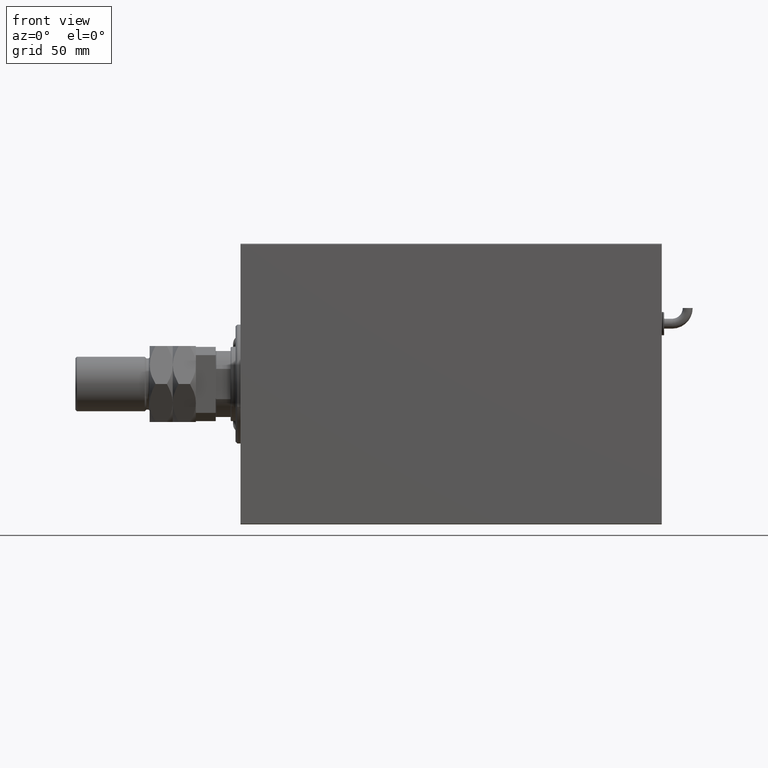
[diagram: clean part render]
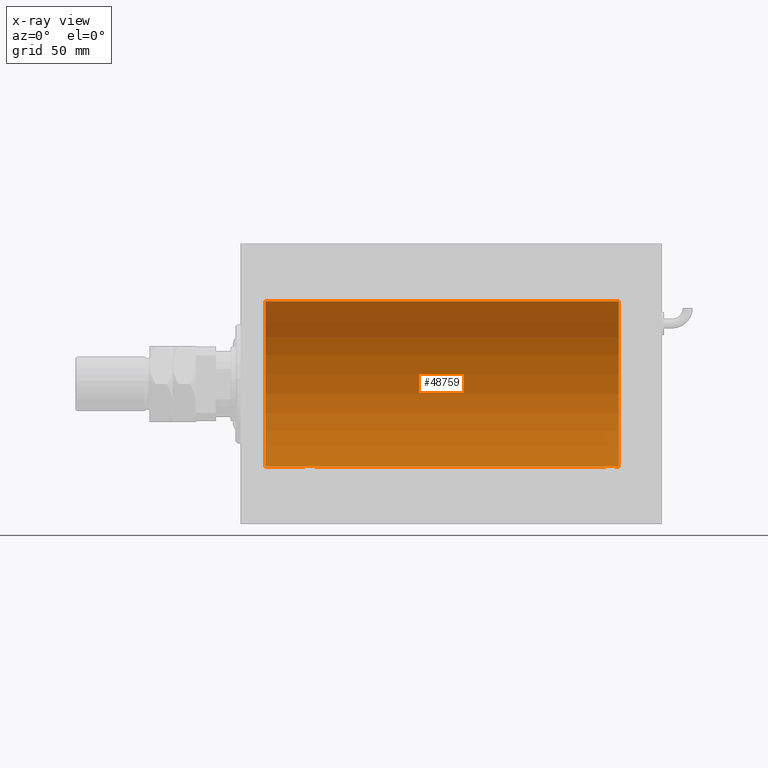
[diagram: x-ray — body ghosted, one internal face saturated and labeled with its STEP entity id]
A machine part, front view, then the same camera in x-ray: the body is ghosted and one INTERNAL B-rep face — a face not visible from any outside direction — is saturated and labeled: STEP entity #48759.
In plain terms, the highlighted cylindrical surface (partial cylindrical patch) has radius 50 mm, axis along (-1, -0, -0).
Its self-contained STEP definition (entity closure, byte-faithful):
#199 = CARTESIAN_POINT ( 'NONE',  ( 227.2031099266032186, 2.807369215369745152, -49.92152015083319583 ) ) ;
#503 = CARTESIAN_POINT ( 'NONE',  ( 227.6867223433927165, 2.132418568805259707, -49.95503838744803460 ) ) ;
#1309 = ORIENTED_EDGE ( 'NONE', *, *, #46638, .F. ) ;
#2515 = DIRECTION ( 'NONE',  ( -1.000000000000000000, -0.000000000000000000, -0.000000000000000000 ) ) ;
#3249 = CARTESIAN_POINT ( 'NONE',  ( 43.88244393595702775, 3.820534283589345215, -49.85393595968220382 ) ) ;
#3564 = CARTESIAN_POINT ( 'NONE',  ( 46.03309295314473815, 1.369053668635239029, -49.98191709664470750 ) ) ;
#3619 = VERTEX_POINT ( 'NONE', #36972 ) ;
#3629 = CARTESIAN_POINT ( 'NONE',  ( 220.7993621877382111, 2.809844036175760618, -49.92137121633495411 ) ) ;
#3876 = CARTESIAN_POINT ( 'NONE',  ( 43.10272132003798617, 4.113850194901019997, -49.83050476025722020 ) ) ;
#3912 = AXIS2_PLACEMENT_3D ( 'NONE', #13206, #15059, #58288 ) ;
#4635 = LINE ( 'NONE', #51924, #18915 ) ;
#5630 = EDGE_CURVE ( 'NONE', #14964, #40802, #53873, .T. ) ;
#6143 = ORIENTED_EDGE ( 'NONE', *, *, #37734, .T. ) ;
#7619 = CARTESIAN_POINT ( 'NONE',  ( 39.19136994275037722, 3.201703158387186665, -49.89777173894964335 ) ) ;
#7660 = CARTESIAN_POINT ( 'NONE',  ( 229.0000000000000000, 0.000000000000000000, 0.000000000000000000 ) ) ;
#7776 = VECTOR ( 'NONE', #2515, 1000.000000000000000 ) ;
#7924 = CARTESIAN_POINT ( 'NONE',  ( 42.27580686784750696, 4.250099715408728329, -49.81903905555740408 ) ) ;
#8234 = CARTESIAN_POINT ( 'NONE',  ( 46.25000000000000000, 6.123233970928975205E-15, -50.00000000000000000 ) ) ;
#8620 = CARTESIAN_POINT ( 'NONE',  ( 222.1171299241770782, 3.820198949706813174, -49.85396053238189751 ) ) ;
#8928 = CARTESIAN_POINT ( 'NONE',  ( 219.7500000000000000, 0.2809437491437377088, -49.99999999999999289 ) ) ;
#9543 = CARTESIAN_POINT ( 'NONE',  ( 225.8824439359570988, 3.820534283589327895, -49.85393595968218960 ) ) ;
#10681 = ORIENTED_EDGE ( 'NONE', *, *, #53306, .T. ) ;
#11087 = CARTESIAN_POINT ( 'NONE',  ( 37.75000000000000711, 4.113764933535406279E-15, -50.00000000000000000 ) ) ;
#12661 = CARTESIAN_POINT ( 'NONE',  ( 219.8856356705657618, 1.100566060006306079, -49.98862465889503426 ) ) ;
#12904 = CARTESIAN_POINT ( 'NONE',  ( 45.68672234339271654, 2.132418568805258374, -49.95503838744804170 ) ) ;
#13206 = CARTESIAN_POINT ( 'NONE',  ( 229.0000000000000000, 0.000000000000000000, 0.000000000000000000 ) ) ;
#13210 = CARTESIAN_POINT ( 'NONE',  ( 44.59157860505092685, 3.379775232620401582, -49.88587880363004956 ) ) ;
#13595 = CARTESIAN_POINT ( 'NONE',  ( 224.2758068678475638, 4.250099715408711454, -49.81903905555740408 ) ) ;
#13627 = CARTESIAN_POINT ( 'NONE',  ( 14.99999999999998579, 6.123233995736764507E-15, -50.00000000000000000 ) ) ;
#14203 = CARTESIAN_POINT ( 'NONE',  ( 227.8198108108714734, 1.883929957684050915, -49.96515938649660171 ) ) ;
#14964 = VERTEX_POINT ( 'NONE', #43092 ) ;
#15059 = DIRECTION ( 'NONE',  ( -1.000000000000000000, -0.000000000000000000, -0.000000000000000000 ) ) ;
#15129 = CARTESIAN_POINT ( 'NONE',  ( 228.2221941516323227, 0.5592384970569909131, -49.99761483193759659 ) ) ;
#15887 = ORIENTED_EDGE ( 'NONE', *, *, #21190, .T. ) ;
#16557 = ORIENTED_EDGE ( 'NONE', *, *, #54516, .F. ) ;
#17272 = CARTESIAN_POINT ( 'NONE',  ( 42.55752310302692365, 4.222431257622166534, -49.82142152089561904 ) ) ;
#17333 = CARTESIAN_POINT ( 'NONE',  ( 219.9674261143144633, 1.370567417712630576, -49.98187507657574713 ) ) ;
#17593 = CARTESIAN_POINT ( 'NONE',  ( 38.18083879883148768, 1.885236035486737682, -49.96510958966687355 ) ) ;
#17910 = CARTESIAN_POINT ( 'NONE',  ( 40.89653788721327743, 4.113772393339292677, -49.83051149236716526 ) ) ;
#17973 = CARTESIAN_POINT ( 'NONE',  ( 220.3114161600499017, 2.129315083715772605, -49.95517470752238864 ) ) ;
#18346 = VECTOR ( 'NONE', #48048, 1000.000000000000000 ) ;
#18893 = CARTESIAN_POINT ( 'NONE',  ( 226.8062131493860534, 3.204122793140528280, -49.89762612798255503 ) ) ;
#18915 = VECTOR ( 'NONE', #52240, 1000.000000000000000 ) ;
#19805 = CARTESIAN_POINT ( 'NONE',  ( 228.2500000000000284, 6.123233970934497231E-15, -50.00000000000000000 ) ) ;
#20064 = LINE ( 'NONE', #60604, #45940 ) ;
#20145 = CARTESIAN_POINT ( 'NONE',  ( 228.2500000000000284, 6.123233970934497231E-15, -50.00000000000000000 ) ) ;
#21038 = EDGE_CURVE ( 'NONE', #43208, #3619, #38339, .T. ) ;
#21190 = EDGE_CURVE ( 'NONE', #61420, #55565, #22291, .T. ) ;
#21932 = CARTESIAN_POINT ( 'NONE',  ( 39.86990638200330750, 3.688265093516114757, -49.86402463145032016 ) ) ;
#21993 = CARTESIAN_POINT ( 'NONE',  ( 219.7775830999469520, 0.5571669497596730691, -49.99763400332481922 ) ) ;
#22291 = CIRCLE ( 'NONE', #43319, 50.00000000000000000 ) ;
#22558 = FACE_OUTER_BOUND ( 'NONE', #46492, .T. ) ;
#22623 = CARTESIAN_POINT ( 'NONE',  ( 221.1913699427504412, 3.201703158387165793, -49.89777173894965046 ) ) ;
#22870 = CARTESIAN_POINT ( 'NONE',  ( 45.37895730856141796, 2.592639214541047732, -49.93326838038160531 ) ) ;
#23551 = CARTESIAN_POINT ( 'NONE',  ( 226.1311681376585909, 3.687449343139604263, -49.86408027804464638 ) ) ;
#23976 = CARTESIAN_POINT ( 'NONE',  ( 229.0000000000000000, 0.000000000000000000, 50.00000000000000000 ) ) ;
#24476 = CARTESIAN_POINT ( 'NONE',  ( 226.5915786050509837, 3.379775232620408243, -49.88587880363004956 ) ) ;
#26483 = CARTESIAN_POINT ( 'NONE',  ( 229.0000000000000000, 6.123233995736764507E-15, -50.00000000000000000 ) ) ;
#27272 = AXIS2_PLACEMENT_3D ( 'NONE', #7660, #40345, #49066 ) ;
#27291 = CARTESIAN_POINT ( 'NONE',  ( 220.6198951369924259, 2.591239970584148011, -49.93334495304385712 ) ) ;
#27607 = CARTESIAN_POINT ( 'NONE',  ( 222.6285539677909355, 4.032152715176922975, -49.83726562785247438 ) ) ;
#27852 = CARTESIAN_POINT ( 'NONE',  ( 37.75000000000001421, 0.2809437491437614121, -50.00000000000000711 ) ) ;
#31570 = CARTESIAN_POINT ( 'NONE',  ( 37.96742611431444203, 1.370567417712651004, -49.98187507657574713 ) ) ;
#32186 = CARTESIAN_POINT ( 'NONE',  ( 45.20310992660323279, 2.807369215369746485, -49.92152015083320293 ) ) ;
#32248 = CARTESIAN_POINT ( 'NONE',  ( 221.4052884493547708, 3.377583483857611313, -49.88603192934380104 ) ) ;
#33173 = CARTESIAN_POINT ( 'NONE',  ( 228.0330929531448021, 1.369053668635237697, -49.98191709664471460 ) ) ;
#34877 = B_SPLINE_CURVE_WITH_KNOTS ( 'NONE', 3,
 ( #56152, #27852, #61126, #55215, #31570, #17593, #50226, #45886, #46505, #7619, #55533, #21932, #59882, #50537, #17910, #36549, #50851, #7924, #17272, #3876, #41541, #3249, #55840, #13210, #37157, #32186, #22870, #12904, #51164, #3564, #36233, #35931, #60818, #8234 ),
 .UNSPECIFIED., .F., .F.,
 ( 4, 2, 2, 2, 2, 2, 2, 2, 2, 2, 2, 2, 2, 2, 2, 2, 4 ),
 ( 1.445583722366810385E-18, 0.0008308394705804747525, 0.001661678941160947770, 0.002492518411741420463, 0.003323357882321893372, 0.004154197352902366282, 0.004985036823482840058, 0.005815876294063313835, 0.006646715764643786745, 0.007477555235224259654, 0.008308394705804732563, 0.009139234176385206340, 0.009970073646965680117, 0.01080091311754615389, 0.01163175258812662767, 0.01246259205870709971, 0.01329343152928757175 ),
 .UNSPECIFIED. ) ;
#35931 = CARTESIAN_POINT ( 'NONE',  ( 46.22219415163225875, 0.5592384970569972413, -49.99761483193760370 ) ) ;
#36233 = CARTESIAN_POINT ( 'NONE',  ( 46.11347230351615423, 1.104090919659213466, -49.98855088738324071 ) ) ;
#36549 = CARTESIAN_POINT ( 'NONE',  ( 41.44525962307189815, 4.222915468341970957, -49.82138079020267440 ) ) ;
#36611 = CARTESIAN_POINT ( 'NONE',  ( 219.7500000000000284, -1.485882679034568268E-14, -50.00000000000000000 ) ) ;
#36850 = CYLINDRICAL_SURFACE ( 'NONE', #3912, 50.00000000000000000 ) ;
#36972 = CARTESIAN_POINT ( 'NONE',  ( 229.0000000000000000, 6.123233995736764507E-15, -50.00000000000000000 ) ) ;
#37157 = CARTESIAN_POINT ( 'NONE',  ( 44.80621314938604627, 3.204122793140533165, -49.89762612798256924 ) ) ;
#37224 = CARTESIAN_POINT ( 'NONE',  ( 223.4452596230719053, 4.222915468341953193, -49.82138079020267440 ) ) ;
#37734 = EDGE_CURVE ( 'NONE', #57509, #60606, #34877, .T. ) ;
#37857 = CARTESIAN_POINT ( 'NONE',  ( 227.3789573085614109, 2.592639214541045511, -49.93326838038160531 ) ) ;
#38339 = CIRCLE ( 'NONE', #27272, 50.00000000000000000 ) ;
#39052 = ORIENTED_EDGE ( 'NONE', *, *, #41195, .F. ) ;
#40345 = DIRECTION ( 'NONE',  ( -1.000000000000000000, 0.000000000000000000, 0.000000000000000000 ) ) ;
#40802 = VERTEX_POINT ( 'NONE', #20145 ) ;
#41195 = EDGE_CURVE ( 'NONE', #57509, #55565, #59158, .T. ) ;
#41541 = CARTESIAN_POINT ( 'NONE',  ( 43.36772109040407486, 4.033536463572239050, -49.83715477915254155 ) ) ;
#43092 = CARTESIAN_POINT ( 'NONE',  ( 219.7500000000000284, -1.485882679034568268E-14, -50.00000000000000000 ) ) ;
#43208 = VERTEX_POINT ( 'NONE', #23976 ) ;
#43319 = AXIS2_PLACEMENT_3D ( 'NONE', #50585, #46241, #55887 ) ;
#44157 = CARTESIAN_POINT ( 'NONE',  ( 14.99999999999998579, 0.000000000000000000, 50.00000000000000000 ) ) ;
#44652 = ORIENTED_EDGE ( 'NONE', *, *, #21038, .F. ) ;
#45886 = CARTESIAN_POINT ( 'NONE',  ( 38.61989513699235488, 2.591239970584176433, -49.93334495304385712 ) ) ;
#45940 = VECTOR ( 'NONE', #46597, 1000.000000000000000 ) ;
#46080 = ORIENTED_EDGE ( 'NONE', *, *, #5630, .T. ) ;
#46241 = DIRECTION ( 'NONE',  ( -1.000000000000000000, 0.000000000000000000, 0.000000000000000000 ) ) ;
#46492 = EDGE_LOOP ( 'NONE', ( #1309, #44652, #10681, #15887, #39052, #6143, #16557, #46080 ) ) ;
#46505 = CARTESIAN_POINT ( 'NONE',  ( 38.79936218773821821, 2.809844036175782822, -49.92137121633495411 ) ) ;
#46570 = CARTESIAN_POINT ( 'NONE',  ( 222.8965378872132419, 4.113772393339272249, -49.83051149236716526 ) ) ;
#46597 = DIRECTION ( 'NONE',  ( -1.000000000000000000, -0.000000000000000000, -0.000000000000000000 ) ) ;
#46638 = EDGE_CURVE ( 'NONE', #3619, #40802, #4635, .T. ) ;
#47484 = CARTESIAN_POINT ( 'NONE',  ( 228.1134723035162040, 1.104090919659208136, -49.98855088738324071 ) ) ;
#48048 = DIRECTION ( 'NONE',  ( -1.000000000000000000, -0.000000000000000000, -0.000000000000000000 ) ) ;
#48759 = ADVANCED_FACE ( 'NONE', ( #22558 ), #36850, .F. ) ;
#49066 = DIRECTION ( 'NONE',  ( 0.000000000000000000, 0.000000000000000000, 1.000000000000000000 ) ) ;
#50226 = CARTESIAN_POINT ( 'NONE',  ( 38.31141616004985195, 2.129315083715800139, -49.95517470752237443 ) ) ;
#50537 = CARTESIAN_POINT ( 'NONE',  ( 40.62855396779088579, 4.032152715176938962, -49.83726562785246017 ) ) ;
#50585 = CARTESIAN_POINT ( 'NONE',  ( 14.99999999999998579, 0.000000000000000000, 0.000000000000000000 ) ) ;
#50851 = CARTESIAN_POINT ( 'NONE',  ( 41.72112854928501946, 4.249899732140195674, -49.81905611587625060 ) ) ;
#50912 = CARTESIAN_POINT ( 'NONE',  ( 220.1808387988314450, 1.885236035486718587, -49.96510958966690197 ) ) ;
#51164 = CARTESIAN_POINT ( 'NONE',  ( 45.81981081087140240, 1.883929957684052026, -49.96515938649660882 ) ) ;
#51231 = CARTESIAN_POINT ( 'NONE',  ( 221.8699063820033075, 3.688265093516099213, -49.86402463145034147 ) ) ;
#51542 = CARTESIAN_POINT ( 'NONE',  ( 224.5575231030269379, 4.222431257622153211, -49.82142152089561904 ) ) ;
#51924 = CARTESIAN_POINT ( 'NONE',  ( 229.0000000000000000, 6.123233995736764507E-15, -50.00000000000000000 ) ) ;
#52156 = CARTESIAN_POINT ( 'NONE',  ( 225.1027213200379435, 4.113850194901010227, -49.83050476025722020 ) ) ;
#52240 = DIRECTION ( 'NONE',  ( -1.000000000000000000, -0.000000000000000000, -0.000000000000000000 ) ) ;
#53306 = EDGE_CURVE ( 'NONE', #43208, #61420, #20064, .T. ) ;
#53785 = CARTESIAN_POINT ( 'NONE',  ( 46.25000000000000000, 6.123233970928975205E-15, -50.00000000000000000 ) ) ;
#53873 = B_SPLINE_CURVE_WITH_KNOTS ( 'NONE', 3,
 ( #36611, #8928, #21993, #12661, #17333, #50912, #17973, #27291, #3629, #22623, #32248, #51231, #8620, #27607, #46570, #37224, #56217, #13595, #51542, #52156, #56831, #9543, #23551, #24476, #18893, #199, #37857, #503, #14203, #33173, #47484, #15129, #57137, #19805 ),
 .UNSPECIFIED., .F., .F.,
 ( 4, 2, 2, 2, 2, 2, 2, 2, 2, 2, 2, 2, 2, 2, 2, 2, 4 ),
 ( 3.321519856917525537E-18, 0.0008308394705804772462, 0.001661678941160951023, 0.002492518411741425233, 0.003323357882321899010, 0.004154197352902373221, 0.004985036823482846997, 0.005815876294063320774, 0.006646715764643794551, 0.007477555235224268328, 0.008308394705804742972, 0.009139234176385216749, 0.009970073646965690525, 0.01080091311754616430, 0.01163175258812663808, 0.01246259205870711186, 0.01329343152928758563 ),
 .UNSPECIFIED. ) ;
#54516 = EDGE_CURVE ( 'NONE', #14964, #60606, #56786, .T. ) ;
#55215 = CARTESIAN_POINT ( 'NONE',  ( 37.88563567056577597, 1.100566060006330060, -49.98862465889503426 ) ) ;
#55533 = CARTESIAN_POINT ( 'NONE',  ( 39.40528844935473529, 3.377583483857625080, -49.88603192934377262 ) ) ;
#55565 = VERTEX_POINT ( 'NONE', #13627 ) ;
#55840 = CARTESIAN_POINT ( 'NONE',  ( 44.13116813765864066, 3.687449343139602931, -49.86408027804462506 ) ) ;
#55887 = DIRECTION ( 'NONE',  ( 0.000000000000000000, 0.000000000000000000, 1.000000000000000000 ) ) ;
#56152 = CARTESIAN_POINT ( 'NONE',  ( 37.75000000000000711, 4.113764933535406279E-15, -50.00000000000000000 ) ) ;
#56217 = CARTESIAN_POINT ( 'NONE',  ( 223.7211285492849981, 4.249899732140177910, -49.81905611587625060 ) ) ;
#56786 = LINE ( 'NONE', #57701, #18346 ) ;
#56831 = CARTESIAN_POINT ( 'NONE',  ( 225.3677210904041317, 4.033536463572223063, -49.83715477915254155 ) ) ;
#57137 = CARTESIAN_POINT ( 'NONE',  ( 228.2500000000000568, 0.2774387832574446433, -50.00000000000000711 ) ) ;
#57509 = VERTEX_POINT ( 'NONE', #11087 ) ;
#57701 = CARTESIAN_POINT ( 'NONE',  ( 229.0000000000000000, 6.123233995736764507E-15, -50.00000000000000000 ) ) ;
#58288 = DIRECTION ( 'NONE',  ( 0.000000000000000000, 0.000000000000000000, 1.000000000000000000 ) ) ;
#59158 = LINE ( 'NONE', #26483, #7776 ) ;
#59882 = CARTESIAN_POINT ( 'NONE',  ( 40.11712992417699297, 3.820198949706826941, -49.85396053238189040 ) ) ;
#60604 = CARTESIAN_POINT ( 'NONE',  ( 229.0000000000000000, 0.000000000000000000, 50.00000000000000000 ) ) ;
#60606 = VERTEX_POINT ( 'NONE', #53785 ) ;
#60818 = CARTESIAN_POINT ( 'NONE',  ( 46.24999999999999289, 0.2774387832574446433, -49.99999999999998579 ) ) ;
#61126 = CARTESIAN_POINT ( 'NONE',  ( 37.77758309994690222, 0.5571669497596974940, -49.99763400332482632 ) ) ;
#61420 = VERTEX_POINT ( 'NONE', #44157 ) ;